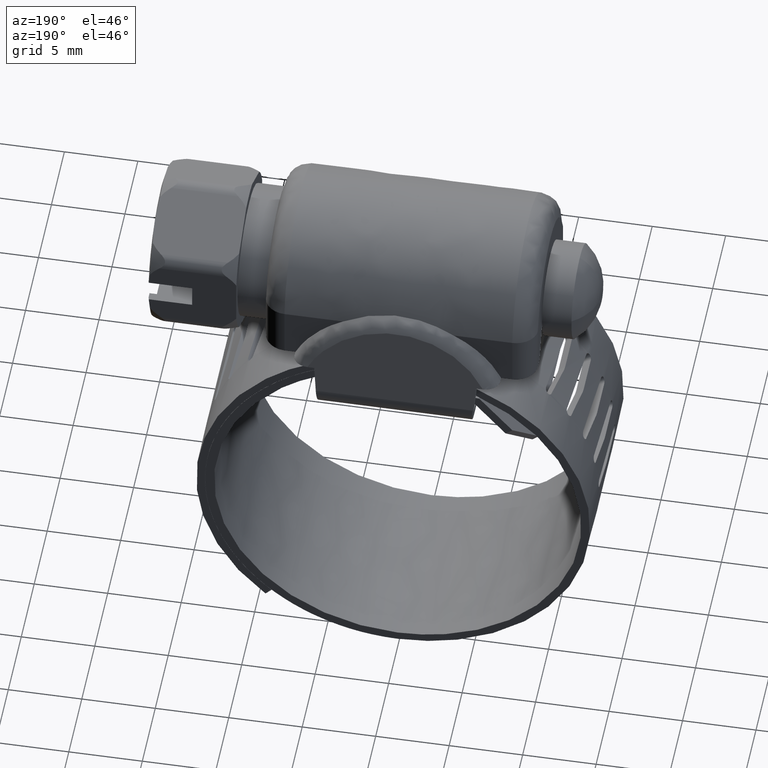
[diagram: clean part render]
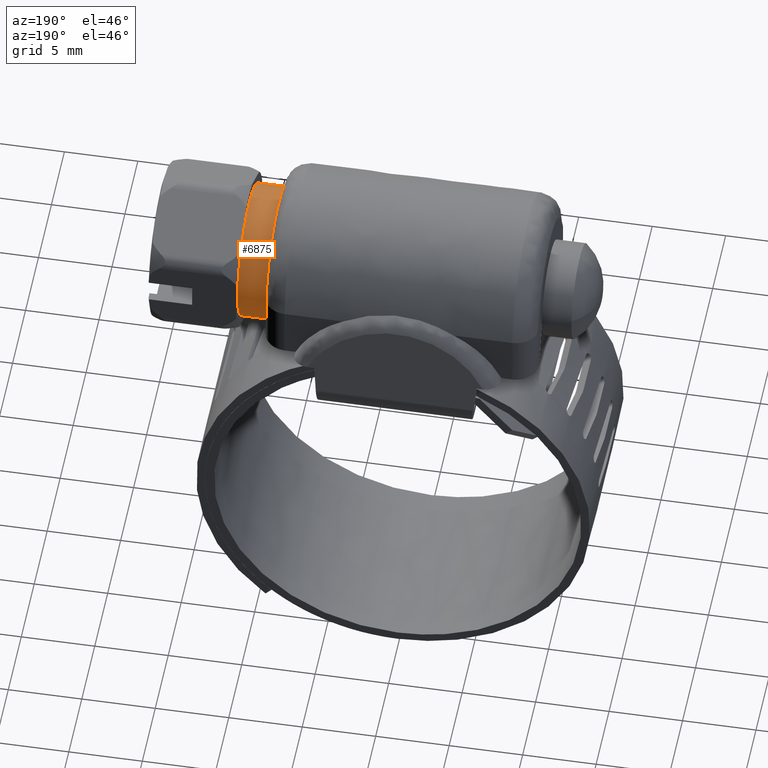
[diagram: same view with one face highlighted and labeled with its STEP entity id]
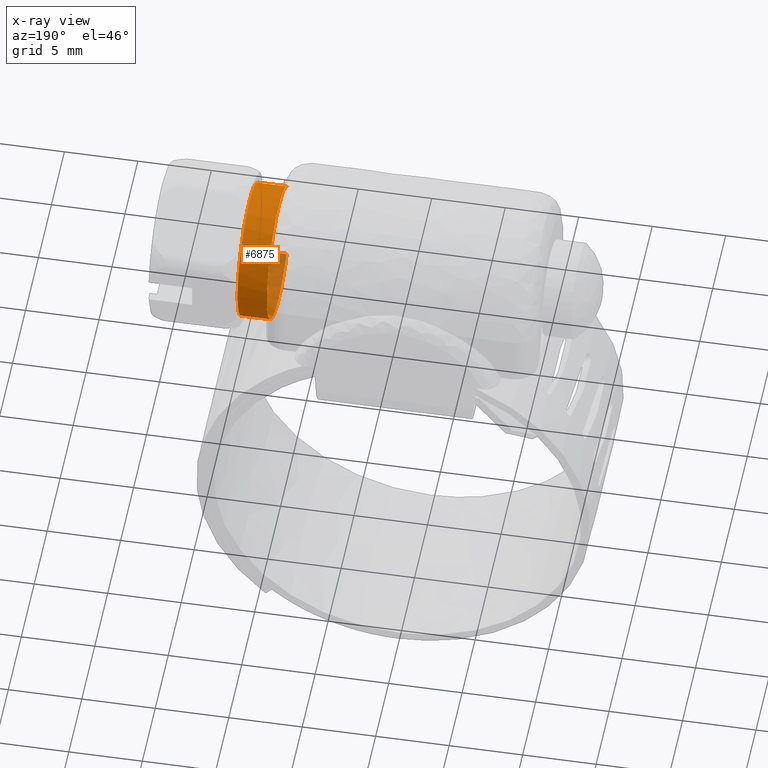
[diagram: x-ray of the same camera — body ghosted, the highlighted face saturated]
A machine part, auxiliary view. The second image highlights one B-rep face of the part: STEP entity #6875.
The next image is the same camera in x-ray: the body ghosted, the highlighted face saturated — about 17% of this face is hidden behind the body in this view.
In plain terms, the highlighted face is a freeform B-spline surface patch.
Its self-contained STEP definition (entity closure, byte-faithful):
#6715=CARTESIAN_POINT('',(11.299999999999997,-3.436000393232092,18.732922172719313));
#6716=CARTESIAN_POINT('',(11.300000000000001,-3.352836524541817,18.831259027768002));
#6717=CARTESIAN_POINT('',(11.300000000000001,-3.264184669555293,18.924678590622090));
#6718=CARTESIAN_POINT('',(11.300000000000001,-0.166589078933401,22.188863260177392));
#6719=CARTESIAN_POINT('',(11.300000000000001,3.097595590621892,19.091267669555489));
#6720=CARTESIAN_POINT('',(11.300000000000001,6.361780260177186,15.993672078933605));
#6721=CARTESIAN_POINT('',(11.300000000000001,3.264184669555293,12.729487409378310));
#6722=CARTESIAN_POINT('',(11.300000000000001,0.166589078933401,9.465302739823017));
#6723=CARTESIAN_POINT('',(11.300000000000001,-3.097595590621892,12.562898330444909));
#6724=CARTESIAN_POINT('',(9.198749999999999,-3.436000393232092,18.732922172719313));
#6725=CARTESIAN_POINT('',(9.198750000000000,-3.352836524541817,18.831259027768002));
#6726=CARTESIAN_POINT('',(9.198750000000000,-3.264184669555293,18.924678590622090));
#6727=CARTESIAN_POINT('',(9.198750000000000,-0.166589078933401,22.188863260177392));
#6728=CARTESIAN_POINT('',(9.198750000000000,3.097595590621892,19.091267669555489));
#6729=CARTESIAN_POINT('',(9.198750000000000,6.361780260177186,15.993672078933605));
#6730=CARTESIAN_POINT('',(9.198750000000000,3.264184669555293,12.729487409378310));
#6731=CARTESIAN_POINT('',(9.198750000000000,0.166589078933401,9.465302739823017));
#6732=CARTESIAN_POINT('',(9.198750000000000,-3.097595590621892,12.562898330444909));
#6740=(BOUNDED_SURFACE()B_SPLINE_SURFACE(2,1,((#6715,#6724),(#6716,#6725),(#6717,#6726),(#6718,#6727),(#6719,#6728),(#6720,#6729),(#6721,#6730),(#6722,#6731),(#6723,#6732)),.UNSPECIFIED.,.F.,.F.,.U.)B_SPLINE_SURFACE_WITH_KNOTS((3,2,2,2,3),(2,2),(0.0,0.298233764908629,7.754077887624337,15.209922010340049,22.665766133055751),(0.0,2.101250000000002),.UNSPECIFIED.)GEOMETRIC_REPRESENTATION_ITEM()RATIONAL_B_SPLINE_SURFACE(((0.977505800795127,0.977505800795127),(0.988284271247462,0.988284271247462),(1.0,1.0),(0.707106781186548,0.707106781186548),(1.0,1.0),(0.707106781186548,0.707106781186548),(1.0,1.0),(0.707106781186548,0.707106781186548),(1.0,1.0)))REPRESENTATION_ITEM('')SURFACE());
#6741=CARTESIAN_POINT('',(9.249999999998847,-3.436000494291609,18.732922288658148));
#6742=VERTEX_POINT('',#6741);
#6743=CARTESIAN_POINT('',(9.250000000000000,0.0,20.327083000000201));
#6744=VERTEX_POINT('',#6743);
#6745=CARTESIAN_POINT('',(9.249999999998847,-3.436000494291609,18.732922288658148));
#6746=CARTESIAN_POINT('',(9.249999999998972,-3.245366278801736,18.958391863924302));
#6747=CARTESIAN_POINT('',(9.249999999998966,-2.878228294638789,19.314586350855869));
#6748=CARTESIAN_POINT('',(9.249999999999236,-2.305638114681619,19.706882481692539));
#6749=CARTESIAN_POINT('',(9.249999999999492,-1.723118656423779,20.001576128598408));
#6750=CARTESIAN_POINT('',(9.249999999999483,-0.967190876849686,20.254127975046309));
#6751=CARTESIAN_POINT('',(9.249999999999989,-0.356351389766025,20.327166250535559));
#6752=CARTESIAN_POINT('',(9.250000000000000,0.0,20.327083000000201));
#6753=B_SPLINE_CURVE_WITH_KNOTS('',3,(#6745,#6746,#6747,#6748,#6749,#6750,#6751,#6752),.UNSPECIFIED.,.F.,.U.,(4,1,1,1,1,4),(0.000000010130250,0.885771929305834,1.527197644990307,2.076980353903768,2.840579349269772,3.909614850058832),.UNSPECIFIED.);
#6754=EDGE_CURVE('',#6742,#6744,#6753,.T.);
#6755=ORIENTED_EDGE('',*,*,#6754,.F.);
#6756=CARTESIAN_POINT('',(11.250000000000000,-3.436000494482454,18.732922288432480));
#6757=VERTEX_POINT('',#6756);
#6758=CARTESIAN_POINT('',(11.250000000000000,-3.436000494482454,18.732922288432480));
#6759=CARTESIAN_POINT('',(9.249999999998847,-3.436000494291609,18.732922288658148));
#6760=QUASI_UNIFORM_CURVE('',1,(#6758,#6759),.UNSPECIFIED.,.F.,.U.);
#6761=EDGE_CURVE('',#6757,#6742,#6760,.T.);
#6762=ORIENTED_EDGE('',*,*,#6761,.F.);
#6763=CARTESIAN_POINT('',(11.250000000000000,0.0,20.327083000000201));
#6764=VERTEX_POINT('',#6763);
#6765=CARTESIAN_POINT('',(11.250000000000000,-3.436000494482454,18.732922288432480));
#6766=CARTESIAN_POINT('',(11.250000000000069,-3.160005390178029,19.059579647105270));
#6767=CARTESIAN_POINT('',(11.249999999999931,-2.683050648620859,19.482769625422090));
#6768=CARTESIAN_POINT('',(11.249999999999959,-1.857502273076252,19.950934946926960));
#6769=CARTESIAN_POINT('',(11.250000000000270,-1.028276269137764,20.246840194841219));
#6770=CARTESIAN_POINT('',(11.249999999999780,-0.356352150726307,20.327162977125990));
#6771=CARTESIAN_POINT('',(11.250000000000000,0.0,20.327083000000201));
#6772=B_SPLINE_CURVE_WITH_KNOTS('',3,(#6765,#6766,#6767,#6768,#6769,#6770,#6771),.UNSPECIFIED.,.F.,.U.,(4,1,1,1,4),(0.000000010129141,1.282845414677033,1.893721136950957,2.840579349484520,3.909614850354377),.UNSPECIFIED.);
#6773=EDGE_CURVE('',#6757,#6764,#6772,.T.);
#6774=ORIENTED_EDGE('',*,*,#6773,.T.);
#6775=CARTESIAN_POINT('',(11.250000000000000,4.499999999999957,15.827082383316091));
#6776=VERTEX_POINT('',#6775);
#6777=CARTESIAN_POINT('',(11.250000000000000,0.0,20.327083000000201));
#6778=CARTESIAN_POINT('',(11.250000000000000,0.276114735732820,20.327099973658989));
#6779=CARTESIAN_POINT('',(11.250000000000011,0.883569934955366,20.271035933348859));
#6780=CARTESIAN_POINT('',(11.249999999999920,1.752000417417512,20.007635092904970));
#6781=CARTESIAN_POINT('',(11.250000000000110,2.464972179120311,19.615152453918061));
#6782=CARTESIAN_POINT('',(11.249999999999940,2.988353573069331,19.206661141294230));
#6783=CARTESIAN_POINT('',(11.249999999999860,3.483955033552441,18.711150822885461));
#6784=CARTESIAN_POINT('',(11.250000000000449,3.867856707679914,18.166058507193100));
#6785=CARTESIAN_POINT('',(11.249999999999760,4.174989172789703,17.536643166073450));
#6786=CARTESIAN_POINT('',(11.250000000000179,4.421234933059708,16.821052444921332));
#6787=CARTESIAN_POINT('',(11.249999999999989,4.500108056218868,16.213655251795810));
#6788=CARTESIAN_POINT('',(11.250000000000000,4.499999999999957,15.827082383316091));
#6789=B_SPLINE_CURVE_WITH_KNOTS('',3,(#6777,#6778,#6779,#6780,#6781,#6782,#6783,#6784,#6785,#6786,#6787,#6788),.UNSPECIFIED.,.F.,.U.,(4,1,1,1,1,1,1,1,1,4),(0.000000015629396,0.828349508133596,1.822381410165069,2.705959857089737,3.258209076130853,3.810418702476138,4.804453466361002,5.246246815677910,5.908938288751776,7.068628170513726),.UNSPECIFIED.);
#6790=EDGE_CURVE('',#6764,#6776,#6789,.T.);
#6791=ORIENTED_EDGE('',*,*,#6790,.T.);
#6792=CARTESIAN_POINT('',(11.250000000000000,0.0,11.327083000000201));
#6793=VERTEX_POINT('',#6792);
#6794=CARTESIAN_POINT('',(11.250000000000000,4.499999999999957,15.827082383316091));
#6795=CARTESIAN_POINT('',(11.250000000000011,4.500005538727094,15.606190996153410));
#6796=CARTESIAN_POINT('',(11.249999999999980,4.463354235366797,15.109178770762730));
#6797=CARTESIAN_POINT('',(11.250000000000011,4.292474619194224,14.408777110133251));
#6798=CARTESIAN_POINT('',(11.250000000000000,3.979762907760468,13.679280404243910));
#6799=CARTESIAN_POINT('',(11.250000000000011,3.596487215608146,13.090114234960060));
#6800=CARTESIAN_POINT('',(11.250000000000000,3.125816225235542,12.570870431584529));
#6801=CARTESIAN_POINT('',(11.250000000000000,2.617397894306360,12.143046621050519));
#6802=CARTESIAN_POINT('',(11.250000000000011,1.951820865189346,11.744088690540011));
#6803=CARTESIAN_POINT('',(11.250000000000000,1.067602299821204,11.415396785421409));
#6804=CARTESIAN_POINT('',(11.250000000000011,0.386569876696840,11.326978330956241));
#6805=CARTESIAN_POINT('',(11.250000000000000,0.0,11.327083000000201));
#6806=B_SPLINE_CURVE_WITH_KNOTS('',3,(#6794,#6795,#6796,#6797,#6798,#6799,#6800,#6801,#6802,#6803,#6804,#6805),.UNSPECIFIED.,.F.,.U.,(4,1,1,1,1,1,1,1,1,4),(0.000000015840682,0.662680353828575,1.491037034178572,2.153725150116874,3.037314755441887,3.589533522071552,4.252215847354653,5.025351646599700,5.908937707579938,7.068627475362647),.UNSPECIFIED.);
#6807=EDGE_CURVE('',#6776,#6793,#6806,.T.);
#6808=ORIENTED_EDGE('',*,*,#6807,.T.);
#6809=CARTESIAN_POINT('',(11.250000000000000,-3.097595505893951,12.562898462289800));
#6810=VERTEX_POINT('',#6809);
#6811=CARTESIAN_POINT('',(11.250000000000000,0.0,11.327083000000201));
#6812=CARTESIAN_POINT('',(11.250000000000011,-0.231324131908701,11.327071759644360));
#6813=CARTESIAN_POINT('',(11.250000000000000,-0.711768129420491,11.364197978595730));
#6814=CARTESIAN_POINT('',(11.250000000000011,-1.388626309045341,11.527870382570510));
#6815=CARTESIAN_POINT('',(11.249999999999980,-2.015236036852652,11.786526933510819));
#6816=CARTESIAN_POINT('',(11.250000000000041,-2.583450932417460,12.122386031625471));
#6817=CARTESIAN_POINT('',(11.249999999999959,-2.929808215713675,12.403654530641560));
#6818=CARTESIAN_POINT('',(11.250000000000000,-3.097595505893951,12.562898462289800));
#6819=B_SPLINE_CURVE_WITH_KNOTS('',3,(#6811,#6812,#6813,#6814,#6815,#6816,#6817,#6818),.UNSPECIFIED.,.F.,.U.,(4,1,1,1,1,4),(5.587722E-009,0.693975739881293,1.441343048812700,2.081926205973090,2.722526279053717,3.416502013344065),.UNSPECIFIED.);
#6820=EDGE_CURVE('',#6793,#6810,#6819,.T.);
#6821=ORIENTED_EDGE('',*,*,#6820,.T.);
#6822=CARTESIAN_POINT('',(9.250000000002089,-3.097595506155066,12.562898462537589));
#6823=VERTEX_POINT('',#6822);
#6824=CARTESIAN_POINT('',(11.250000000000000,-3.097595505893951,12.562898462289800));
#6825=CARTESIAN_POINT('',(9.250000000002089,-3.097595506155066,12.562898462537589));
#6826=QUASI_UNIFORM_CURVE('',1,(#6824,#6825),.UNSPECIFIED.,.F.,.U.);
#6827=EDGE_CURVE('',#6810,#6823,#6826,.T.);
#6828=ORIENTED_EDGE('',*,*,#6827,.T.);
#6829=CARTESIAN_POINT('',(9.250000000000000,0.0,11.327083000000201));
#6830=VERTEX_POINT('',#6829);
#6831=CARTESIAN_POINT('',(9.250000000000000,0.0,11.327083000000201));
#6832=CARTESIAN_POINT('',(9.250000000000188,-0.302499820920589,11.327054410729859));
#6833=CARTESIAN_POINT('',(9.250000000000666,-0.960889307538382,11.393670319274451));
#6834=CARTESIAN_POINT('',(9.250000000001187,-1.760269477780113,11.658821221912520));
#6835=CARTESIAN_POINT('',(9.250000000001664,-2.496191727886769,12.059258172735319));
#6836=CARTESIAN_POINT('',(9.250000000001972,-2.878198595460024,12.354632394374351));
#6837=CARTESIAN_POINT('',(9.250000000002089,-3.097595506155066,12.562898462537589));
#6838=B_SPLINE_CURVE_WITH_KNOTS('',3,(#6831,#6832,#6833,#6834,#6835,#6836,#6837),.UNSPECIFIED.,.F.,.U.,(4,1,1,1,4),(5.588802E-009,0.907508946866633,1.975158970332664,2.508993072431723,3.416502013704043),.UNSPECIFIED.);
#6839=EDGE_CURVE('',#6830,#6823,#6838,.T.);
#6840=ORIENTED_EDGE('',*,*,#6839,.F.);
#6841=CARTESIAN_POINT('',(9.250000000000000,4.499999999999957,15.827082383316091));
#6842=VERTEX_POINT('',#6841);
#6843=CARTESIAN_POINT('',(9.250000000000000,4.499999999999957,15.827082383316091));
#6844=CARTESIAN_POINT('',(9.250000000000007,4.500005340308614,15.606191120113699));
#6845=CARTESIAN_POINT('',(9.249999999999986,4.463355270583385,15.109178124023501));
#6846=CARTESIAN_POINT('',(9.250000000000007,4.292474267603457,14.408777254576901));
#6847=CARTESIAN_POINT('',(9.249999999999998,4.008841626974743,13.747150353773570));
#6848=CARTESIAN_POINT('',(9.250000000000007,3.640903602500639,13.150011799297520));
#6849=CARTESIAN_POINT('',(9.249999999999995,3.182328565129742,12.618391752408320));
#6850=CARTESIAN_POINT('',(9.250000000000004,2.645636352978018,12.166826687897320));
#6851=CARTESIAN_POINT('',(9.250000000000009,1.985665497383085,11.760102683623391));
#6852=CARTESIAN_POINT('',(9.249999999999991,1.104417447650138,11.420156027423570));
#6853=CARTESIAN_POINT('',(9.250000000000014,0.386571158041245,11.326982284273310));
#6854=CARTESIAN_POINT('',(9.250000000000000,0.0,11.327083000000201));
#6855=B_SPLINE_CURVE_WITH_KNOTS('',3,(#6843,#6844,#6845,#6846,#6847,#6848,#6849,#6850,#6851,#6852,#6853,#6854),.UNSPECIFIED.,.F.,.U.,(4,1,1,1,1,1,1,1,1,4),(0.000000015840682,0.662680353828575,1.491037034178572,2.153725150116874,2.816412708005343,3.589533522071552,4.252215847354653,4.914903119589559,5.908937707579938,7.068627475362647),.UNSPECIFIED.);
#6856=EDGE_CURVE('',#6842,#6830,#6855,.T.);
#6857=ORIENTED_EDGE('',*,*,#6856,.F.);
#6858=CARTESIAN_POINT('',(9.250000000000000,0.0,20.327083000000201));
#6859=CARTESIAN_POINT('',(9.250000000000009,0.276116713672852,20.327108395987391));
#6860=CARTESIAN_POINT('',(9.249999999999981,0.809930096363471,20.277797017894510));
#6861=CARTESIAN_POINT('',(9.250000000000007,1.575620938836123,20.065920516676108));
#6862=CARTESIAN_POINT('',(9.250000000000005,2.243698568688414,19.749929600246951));
#6863=CARTESIAN_POINT('',(9.249999999999965,2.791610770555696,19.373998925469820));
#6864=CARTESIAN_POINT('',(9.250000000000071,3.283550339919997,18.928135587819892));
#6865=CARTESIAN_POINT('',(9.250000000000000,3.752414458446418,18.356884168821740));
#6866=CARTESIAN_POINT('',(9.250000000000014,4.126987469892822,17.676288550009829));
#6867=CARTESIAN_POINT('',(9.249999999999986,4.421215325245469,16.821045193460861));
#6868=CARTESIAN_POINT('',(9.250000000000050,4.500114350150515,16.213657587715730));
#6869=CARTESIAN_POINT('',(9.250000000000000,4.499999999999957,15.827082383316091));
#6870=B_SPLINE_CURVE_WITH_KNOTS('',3,(#6858,#6859,#6860,#6861,#6862,#6863,#6864,#6865,#6866,#6867,#6868,#6869),.UNSPECIFIED.,.F.,.U.,(4,1,1,1,1,1,1,1,1,4),(0.000000015629396,0.828349508133596,1.601484430385031,2.374624238732157,3.037315054016770,3.589533874329912,4.362667730098625,5.246246815677910,5.908938288751776,7.068628170513726),.UNSPECIFIED.);
#6871=EDGE_CURVE('',#6744,#6842,#6870,.T.);
#6872=ORIENTED_EDGE('',*,*,#6871,.F.);
#6873=EDGE_LOOP('',(#6755,#6762,#6774,#6791,#6808,#6821,#6828,#6840,#6857,#6872));
#6874=FACE_OUTER_BOUND('',#6873,.T.);
#6875=ADVANCED_FACE('',(#6874),#6740,.T.);